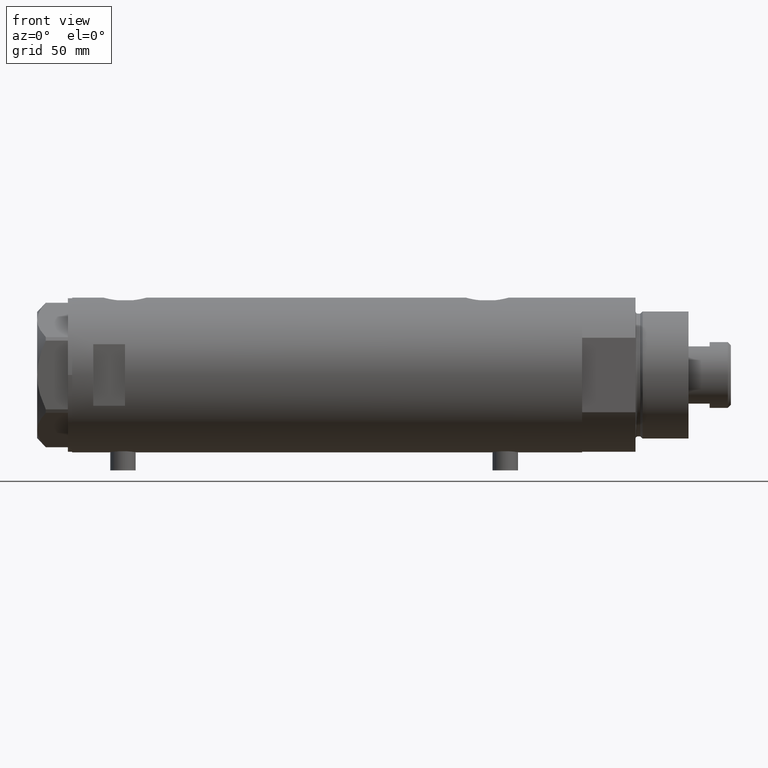
[diagram: clean part render]
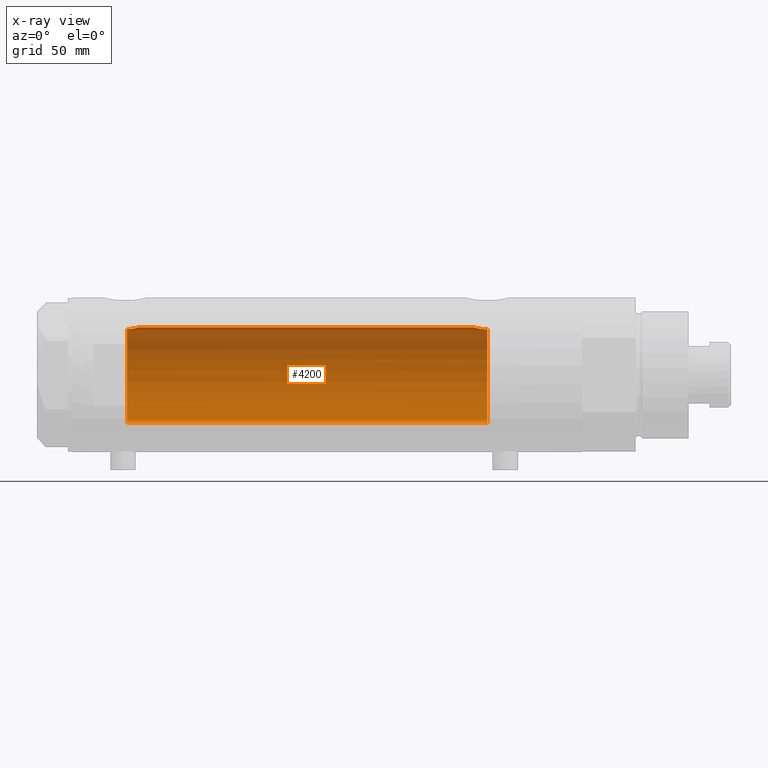
[diagram: x-ray — body ghosted, one internal face saturated and labeled with its STEP entity id]
A machine part, front view, then the same camera in x-ray: the body is ghosted and one INTERNAL B-rep face — a face not visible from any outside direction — is saturated and labeled: STEP entity #4200.
In plain terms, the highlighted cylindrical surface (partial cylindrical patch) has radius 22.5 mm, axis along (1, 0, -0).
Its self-contained STEP definition (entity closure, byte-faithful):
#38 = ORIENTED_EDGE ( 'NONE', *, *, #3980, .F. ) ;
#58 = CARTESIAN_POINT ( 'NONE',  ( 22.50000000000000355, 0.000000000000000000, 88.82000000000000739 ) ) ;
#83 = FACE_OUTER_BOUND ( 'NONE', #786, .T. ) ;
#106 = ORIENTED_EDGE ( 'NONE', *, *, #310, .T. ) ;
#211 = LINE ( 'NONE', #4112, #1733 ) ;
#231 = EDGE_CURVE ( 'NONE', #2540, #756, #2656, .T. ) ;
#251 = CARTESIAN_POINT ( 'NONE',  ( 21.51969523957628283, 6.569111213712935715, -75.16380209493694053 ) ) ;
#281 = CARTESIAN_POINT ( 'NONE',  ( 21.80257506594836414, 5.561983929949493088, 91.86293428743495326 ) ) ;
#310 = EDGE_CURVE ( 'NONE', #3587, #1616, #1849, .T. ) ;
#327 = CARTESIAN_POINT ( 'NONE',  ( 22.31307373663816662, 2.921646833104070140, -69.68858613169777527 ) ) ;
#477 = EDGE_CURVE ( 'NONE', #2214, #1616, #3122, .T. ) ;
#510 = EDGE_CURVE ( 'NONE', #756, #3587, #1026, .T. ) ;
#657 = DIRECTION ( 'NONE',  ( -0.000000000000000000, -0.000000000000000000, -1.000000000000000000 ) ) ;
#678 = CARTESIAN_POINT ( 'NONE',  ( -22.50000000000000355, 0.000000000000000000, 120.4000000000000057 ) ) ;
#756 = VERTEX_POINT ( 'NONE', #4273 ) ;
#786 = EDGE_LOOP ( 'NONE', ( #38, #1250, #2914, #2243, #106, #1718 ) ) ;
#798 = DIRECTION ( 'NONE',  ( -1.000000000000000000, 0.000000000000000000, 0.000000000000000000 ) ) ;
#931 = CARTESIAN_POINT ( 'NONE',  ( 21.88602906110443058, 5.222191658358653399, -71.59110908501990878 ) ) ;
#938 = AXIS2_PLACEMENT_3D ( 'NONE', #2918, #2574, #798 ) ;
#958 = CARTESIAN_POINT ( 'NONE',  ( 21.51635656889892800, 6.580000000000002736, -75.59999999999999432 ) ) ;
#977 = CARTESIAN_POINT ( 'NONE',  ( 21.51635656889893156, 6.580000000000001847, -75.38312317022888465 ) ) ;
#978 = CARTESIAN_POINT ( 'NONE',  ( 21.97198143592079234, 4.852313884858193482, 90.93898489903314442 ) ) ;
#993 = AXIS2_PLACEMENT_3D ( 'NONE', #2929, #2239, #3278 ) ;
#1000 = CARTESIAN_POINT ( 'NONE',  ( 22.40265168709897026, 2.128491761919766301, -69.35897789146818582 ) ) ;
#1026 = LINE ( 'NONE', #678, #1640 ) ;
#1032 = VERTEX_POINT ( 'NONE', #58 ) ;
#1061 = CARTESIAN_POINT ( 'NONE',  ( 22.40112435233284671, 2.115025885874704414, 89.16613662186026090 ) ) ;
#1085 = CARTESIAN_POINT ( 'NONE',  ( 22.45973433770731376, 1.359115216171842722, 88.95894713662340791 ) ) ;
#1122 = CARTESIAN_POINT ( 'NONE',  ( 22.44738562510071489, 1.549445000368397940, 89.00203276325541424 ) ) ;
#1250 = ORIENTED_EDGE ( 'NONE', *, *, #1397, .F. ) ;
#1273 = B_SPLINE_CURVE_WITH_KNOTS ( 'NONE', 3,
 ( #2428, #1696, #1292, #2685, #4060, #1986, #3388, #281, #4443, #978, #3045, #4422, #2355, #1828, #4228, #1061, #4190, #1122, #1085, #2534, #3840, #2469 ),
 .UNSPECIFIED., .F., .F.,
 ( 4, 2, 2, 2, 2, 2, 2, 2, 2, 2, 4 ),
 ( 0.03202894702871425525, 0.03261250414633488220, 0.03319606126395550916, 0.03436317549919672837, 0.03553028973443794758, 0.03669740396967915985, 0.03786451820492037906, 0.03903163244016159827, 0.03961518955778220441, 0.04019874667540280361, 0.04136586091064399506 ),
 .UNSPECIFIED. ) ;
#1292 = CARTESIAN_POINT ( 'NONE',  ( 21.55996057785741371, 6.435875139617808216, 94.01641692772588499 ) ) ;
#1332 = CARTESIAN_POINT ( 'NONE',  ( 22.07793805162484091, 4.348669293362737776, -70.64321183416399208 ) ) ;
#1365 = CARTESIAN_POINT ( 'NONE',  ( 22.50000000000000355, 8.058593785575293352E-16, -69.01999999999999602 ) ) ;
#1397 = EDGE_CURVE ( 'NONE', #2540, #1032, #1273, .T. ) ;
#1616 = VERTEX_POINT ( 'NONE', #1821 ) ;
#1624 = CARTESIAN_POINT ( 'NONE',  ( 21.53277870401796434, 6.526097350343576409, -74.73193080670431243 ) ) ;
#1640 = VECTOR ( 'NONE', #2383, 1000.000000000000000 ) ;
#1651 = CARTESIAN_POINT ( 'NONE',  ( 22.50000000000000355, 8.058593785575293352E-16, -69.01999999999999602 ) ) ;
#1673 = CARTESIAN_POINT ( 'NONE',  ( 22.50000000000000711, 0.4308769323960456310, -69.02000000000001023 ) ) ;
#1695 = CARTESIAN_POINT ( 'NONE',  ( 21.85514244747244561, 5.349553529053608258, -71.76278474480278646 ) ) ;
#1696 = CARTESIAN_POINT ( 'NONE',  ( 21.54850992350584704, 6.473999851071387646, 94.20769989068857342 ) ) ;
#1718 = ORIENTED_EDGE ( 'NONE', *, *, #477, .F. ) ;
#1733 = VECTOR ( 'NONE', #657, 1000.000000000000000 ) ;
#1821 = CARTESIAN_POINT ( 'NONE',  ( 21.51635656889892800, 6.580000000000002736, -75.59999999999999432 ) ) ;
#1828 = CARTESIAN_POINT ( 'NONE',  ( 22.30007684883240060, 3.011608117356129988, 89.53690468166831806 ) ) ;
#1849 = CIRCLE ( 'NONE', #2942, 22.50000000000000355 ) ;
#1985 = CARTESIAN_POINT ( 'NONE',  ( 21.94924653817634663, 4.949760619110004534, -71.25922104935665402 ) ) ;
#1986 = CARTESIAN_POINT ( 'NONE',  ( 21.65875036540690601, 6.096384986856001831, 92.89350157007415021 ) ) ;
#2113 = CYLINDRICAL_SURFACE ( 'NONE', #938, 22.50000000000000355 ) ;
#2179 = CARTESIAN_POINT ( 'NONE',  ( 21.53958216864942088, 6.503568251352485952, 94.40000000000000568 ) ) ;
#2214 = VERTEX_POINT ( 'NONE', #1365 ) ;
#2239 = DIRECTION ( 'NONE',  ( 0.000000000000000000, 0.000000000000000000, 1.000000000000000000 ) ) ;
#2243 = ORIENTED_EDGE ( 'NONE', *, *, #510, .T. ) ;
#2355 = CARTESIAN_POINT ( 'NONE',  ( 22.20005338163446496, 3.677069589895778812, 89.92964083487821370 ) ) ;
#2383 = DIRECTION ( 'NONE',  ( -0.000000000000000000, -0.000000000000000000, -1.000000000000000000 ) ) ;
#2428 = CARTESIAN_POINT ( 'NONE',  ( 21.53958216864942088, 6.503568251352485952, 94.40000000000000568 ) ) ;
#2469 = CARTESIAN_POINT ( 'NONE',  ( 22.50000000000000355, 0.000000000000000000, 88.82000000000000739 ) ) ;
#2534 = CARTESIAN_POINT ( 'NONE',  ( 22.48961798642638144, 0.7839168256130889523, 88.85525408827135152 ) ) ;
#2540 = VERTEX_POINT ( 'NONE', #2179 ) ;
#2574 = DIRECTION ( 'NONE',  ( -0.000000000000000000, -0.000000000000000000, -1.000000000000000000 ) ) ;
#2656 = CIRCLE ( 'NONE', #993, 22.50000000000000355 ) ;
#2685 = CARTESIAN_POINT ( 'NONE',  ( 21.58771824211647683, 6.342145538420568052, 93.63591924784435605 ) ) ;
#2753 = CARTESIAN_POINT ( 'NONE',  ( 21.61738790272777777, 6.242481197317903074, -73.47475324290418541 ) ) ;
#2914 = ORIENTED_EDGE ( 'NONE', *, *, #231, .T. ) ;
#2918 = CARTESIAN_POINT ( 'NONE',  ( 0.000000000000000000, 0.000000000000000000, 120.4000000000000057 ) ) ;
#2929 = CARTESIAN_POINT ( 'NONE',  ( 0.000000000000000000, 0.000000000000000000, 94.40000000000000568 ) ) ;
#2942 = AXIS2_PLACEMENT_3D ( 'NONE', #3119, #4082, #4153 ) ;
#3019 = CARTESIAN_POINT ( 'NONE',  ( 22.25860915731085043, 3.306748059303226128, -69.89512753277104196 ) ) ;
#3045 = CARTESIAN_POINT ( 'NONE',  ( 22.03020271031500599, 4.583618747547674843, 90.66326305060307789 ) ) ;
#3065 = CARTESIAN_POINT ( 'NONE',  ( 21.76592257976932743, 5.705656113855375189, -72.29484284637811697 ) ) ;
#3086 = CARTESIAN_POINT ( 'NONE',  ( 21.54248662244913604, 6.494090541481658541, -74.51861175082140676 ) ) ;
#3119 = CARTESIAN_POINT ( 'NONE',  ( 0.000000000000000000, 0.000000000000000000, -75.59999999999999432 ) ) ;
#3122 = B_SPLINE_CURVE_WITH_KNOTS ( 'NONE', 3,
 ( #1651, #1673, #4420, #3434, #1000, #327, #3019, #4464, #1332, #3705, #1985, #931, #1695, #3065, #4102, #2753, #4133, #3086, #1624, #251, #977, #958 ),
 .UNSPECIFIED., .F., .F.,
 ( 4, 2, 2, 2, 2, 2, 2, 2, 2, 2, 4 ),
 ( 0.02068572879290662969, 0.02197833177876011915, 0.02327093476461360860, 0.02456353775046710153, 0.02585614073632059098, 0.02650244222924735132, 0.02714874372217410819, 0.02844134670802762888, 0.02973394969388114956, 0.03038025118680791337, 0.03102655267973467371 ),
 .UNSPECIFIED. ) ;
#3257 = CARTESIAN_POINT ( 'NONE',  ( -22.50000000000000355, 0.000000000000000000, -75.59999999999999432 ) ) ;
#3278 = DIRECTION ( 'NONE',  ( 1.000000000000000000, 0.000000000000000000, 0.000000000000000000 ) ) ;
#3388 = CARTESIAN_POINT ( 'NONE',  ( 21.70300828301578733, 5.938634204148080187, 92.54008341356920653 ) ) ;
#3434 = CARTESIAN_POINT ( 'NONE',  ( 22.43846943857365517, 1.717024460055897039, -69.23305400432137446 ) ) ;
#3587 = VERTEX_POINT ( 'NONE', #3257 ) ;
#3705 = CARTESIAN_POINT ( 'NONE',  ( 21.98170506496023791, 4.804030677015548534, -71.09847163284564431 ) ) ;
#3840 = CARTESIAN_POINT ( 'NONE',  ( 22.50000000000000000, 0.3947970979781452727, 88.81999999999999318 ) ) ;
#3980 = EDGE_CURVE ( 'NONE', #1032, #2214, #211, .T. ) ;
#4060 = CARTESIAN_POINT ( 'NONE',  ( 21.60406082673097572, 6.286405977953737789, 93.44666670735806235 ) ) ;
#4082 = DIRECTION ( 'NONE',  ( 0.000000000000000000, 0.000000000000000000, -1.000000000000000000 ) ) ;
#4102 = CARTESIAN_POINT ( 'NONE',  ( 21.71097692913351906, 5.908765693315412904, -72.67224774632268236 ) ) ;
#4112 = CARTESIAN_POINT ( 'NONE',  ( 22.50000000000000355, 2.755455298081545172E-15, 120.4000000000000057 ) ) ;
#4133 = CARTESIAN_POINT ( 'NONE',  ( 21.58039466125149630, 6.367443256290039599, -73.88625661091904817 ) ) ;
#4153 = DIRECTION ( 'NONE',  ( -1.000000000000000000, 0.000000000000000000, 0.000000000000000000 ) ) ;
#4190 = CARTESIAN_POINT ( 'NONE',  ( 22.41810768969941847, 1.927264596308561284, 89.10552498238021712 ) ) ;
#4200 = ADVANCED_FACE ( 'NONE', ( #83 ), #2113, .F. ) ;
#4228 = CARTESIAN_POINT ( 'NONE',  ( 22.34487948028763427, 2.662928462767977233, 89.37031008565887191 ) ) ;
#4273 = CARTESIAN_POINT ( 'NONE',  ( -22.50000000000000355, 0.000000000000000000, 94.40000000000000568 ) ) ;
#4420 = CARTESIAN_POINT ( 'NONE',  ( 22.48752745446833146, 0.8626660575027231825, -69.06226479722903377 ) ) ;
#4422 = CARTESIAN_POINT ( 'NONE',  ( 22.14421896774458531, 3.996618394220595061, 90.15850411031067324 ) ) ;
#4443 = CARTESIAN_POINT ( 'NONE',  ( 21.85834467356398747, 5.340944334976046370, 91.53736885285054825 ) ) ;
#4464 = CARTESIAN_POINT ( 'NONE',  ( 22.14109776314136724, 4.018961829707384581, -70.37237162697964266 ) ) ;